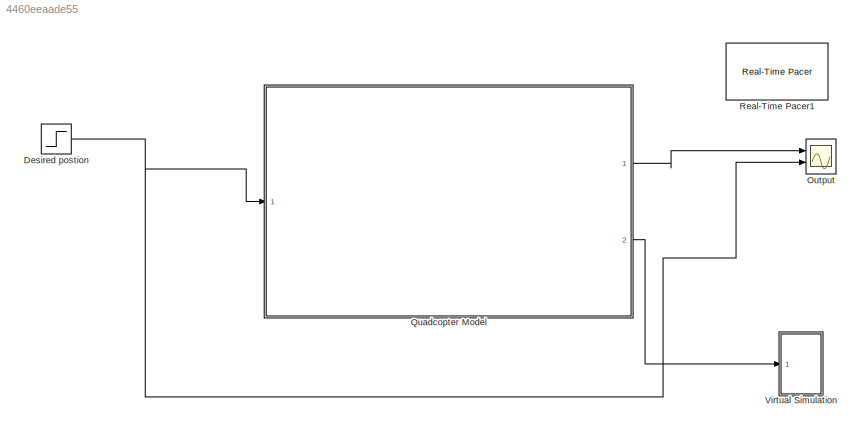
MODEL slx_4460eeaade55
KIND model
CONFIG AbsTol = auto
CONFIG EnableMultiTasking = off
CONFIG FixedStep = auto
CONFIG MaxStep = auto
CONFIG MinStep = auto
CONFIG RelTol = 1e-3
CONFIG SampleTimeConstraint = Unconstrained
CONFIG Solver = VariableStepAuto
CONFIG SolverName = VariableStepAuto
CONFIG StartTime = 0.0
CONFIG StopTime = 100.0
BLOCK [Step] Desired postion
  After = 2
  SampleTime = 0
BLOCK [Scope] Output
  Floating = off
  NumInputPorts = 2
  Ports = [2]
  ScopeSpecificationString = Simulink.scopes.TimeScopeBlockCfg('CurrentConfiguration', extmgr.ConfigurationSet(extmgr.Configuration('Core','General UI',true),extmgr.Configuration('Core','Source UI',true),extmgr.Configuration('Sources','WiredSimulink',true),extmgr.Configuration('Visuals','Time Domain',true,'SerializedDisplays',{struct('MinYLimReal','-0.25657','MaxYLimReal','2.30909','YLabelReal','','MinYLimMag','0.00000','MaxY...<+1383ch>
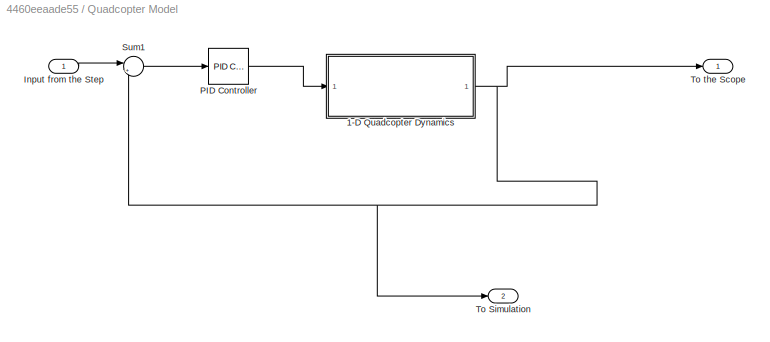
BLOCK [SubSystem] Quadcopter Model
  Ports = [1, 2]
  RequestExecContextInheritance = off
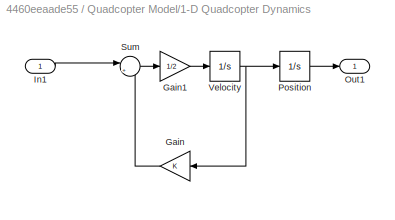
BLOCK [SubSystem] Quadcopter Model/1-D Quadcopter Dynamics
  Ports = [1, 1]
  RequestExecContextInheritance = off
BLOCK [Gain] Quadcopter Model/1-D Quadcopter Dynamics/Gain
  OutDataTypeStr = Inherit: Inherit via internal rule
  ParamDataTypeStr = Inherit: Inherit via internal rule
  SaturateOnIntegerOverflow = off
BLOCK [Gain] Quadcopter Model/1-D Quadcopter Dynamics/Gain1
  Gain = 1/2
  OutDataTypeStr = Inherit: Inherit via internal rule
  ParamDataTypeStr = Inherit: Inherit via internal rule
  SaturateOnIntegerOverflow = off
BLOCK [Inport] Quadcopter Model/1-D Quadcopter Dynamics/In1
  IconDisplay = Port number
BLOCK [Outport] Quadcopter Model/1-D Quadcopter Dynamics/Out1
  IconDisplay = Port number
BLOCK [Integrator] Quadcopter Model/1-D Quadcopter Dynamics/Position
  Ports = [1, 1]
BLOCK [Sum] Quadcopter Model/1-D Quadcopter Dynamics/Sum
  IconShape = round
  InputSameDT = off
  Inputs = |+-
  OutDataTypeStr = Inherit: Inherit via internal rule
  Ports = [2, 1]
  SaturateOnIntegerOverflow = off
BLOCK [Integrator] Quadcopter Model/1-D Quadcopter Dynamics/Velocity
  Ports = [1, 1]
BLOCK [Inport] Quadcopter Model/Input from the Step
  IconDisplay = Port number
BLOCK [Reference] Quadcopter Model/PID Controller  REF=simulink/Continuous/PID Controller
  Ports = [1, 1]
  SourceBlock = simulink/Continuous/PID Controller
  SourceProductBaseCode = SL
  SourceProductName = Simulink
  SourceType = PID 1dof
BLOCK [Sum] Quadcopter Model/Sum1
  IconShape = round
  InputSameDT = off
  Inputs = |+-
  OutDataTypeStr = Inherit: Inherit via internal rule
  Ports = [2, 1]
  SaturateOnIntegerOverflow = off
BLOCK [Outport] Quadcopter Model/To Simulation
  IconDisplay = Port number
  Port = 2
BLOCK [Outport] Quadcopter Model/To the Scope
  IconDisplay = Port number
BLOCK [Reference] Real-Time Pacer1  REF=realtime_pacer_lib/Real-Time Pacer
  Ports = []
  SourceBlock = realtime_pacer_lib/Real-Time Pacer
  SourceType = RealTime_Pacer
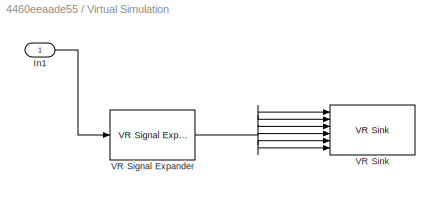
BLOCK [SubSystem] Virtual Simulation
  Ports = [1]
  RequestExecContextInheritance = off
BLOCK [Inport] Virtual Simulation/In1
  IconDisplay = Port number
BLOCK [Reference] Virtual Simulation/VR Signal Expander  REF=vrlib/VR Signal Expander
  Ports = [1, 1]
  SourceBlock = vrlib/VR Signal Expander
  SourceProductBaseCode = VR
  SourceProductName = Simulink 3D Animation
  SourceType = VR Signal Expander
BLOCK [Reference] Virtual Simulation/VR Sink  REF=vrlib/VR Sink
  InstantiateOnLoad = on
  Ports = [6]
  SourceBlock = vrlib/VR Sink
  SourceProductBaseCode = VR
  SourceProductName = Simulink 3D Animation
  SourceType = Virtual Reality Sink
NET Desired postion:1 -> Output:2, Quadcopter Model:1
LINE Quadcopter Model/1-D Quadcopter Dynamics/Gain1:1 -> Quadcopter Model/1-D Quadcopter Dynamics/Velocity:1
LINE Quadcopter Model/1-D Quadcopter Dynamics/Gain:1 -> Quadcopter Model/1-D Quadcopter Dynamics/Sum:2
LINE Quadcopter Model/1-D Quadcopter Dynamics/In1:1 -> Quadcopter Model/1-D Quadcopter Dynamics/Sum:1
LINE Quadcopter Model/1-D Quadcopter Dynamics/Position:1 -> Quadcopter Model/1-D Quadcopter Dynamics/Out1:1
LINE Quadcopter Model/1-D Quadcopter Dynamics/Sum:1 -> Quadcopter Model/1-D Quadcopter Dynamics/Gain1:1
NET Quadcopter Model/1-D Quadcopter Dynamics/Velocity:1 -> Quadcopter Model/1-D Quadcopter Dynamics/Gain:1, Quadcopter Model/1-D Quadcopter Dynamics/Position:1
NET Quadcopter Model/1-D Quadcopter Dynamics:1 -> Quadcopter Model/Sum1:2, Quadcopter Model/To Simulation:1, Quadcopter Model/To the Scope:1
LINE Quadcopter Model/Input from the Step:1 -> Quadcopter Model/Sum1:1
LINE Quadcopter Model/PID Controller:1 -> Quadcopter Model/1-D Quadcopter Dynamics:1
LINE Quadcopter Model/Sum1:1 -> Quadcopter Model/PID Controller:1
LINE Quadcopter Model:1 -> Output:1
LINE Quadcopter Model:2 -> Virtual Simulation:1
LINE Virtual Simulation/In1:1 -> Virtual Simulation/VR Signal Expander:1
NET Virtual Simulation/VR Signal Expander:1 -> Virtual Simulation/VR Sink:1, Virtual Simulation/VR Sink:2, Virtual Simulation/VR Sink:3, Virtual Simulation/VR Sink:4, Virtual Simulation/VR Sink:5, Virtual Simulation/VR Sink:6
note: NET lines group one-source signal fan-out (src -> all destinations, sorted); 1:1 wires keep LINE
